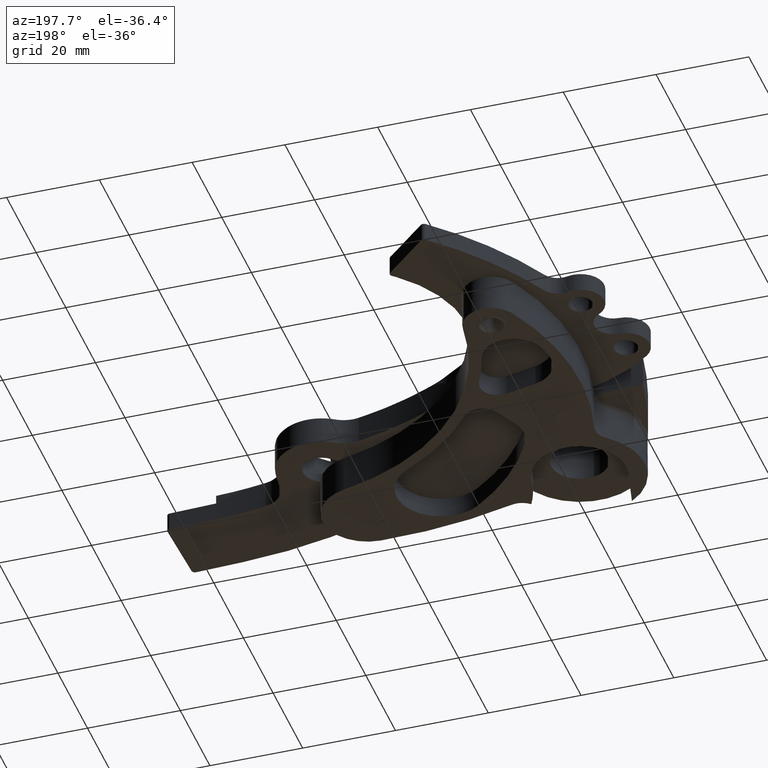
[diagram: clean part render]
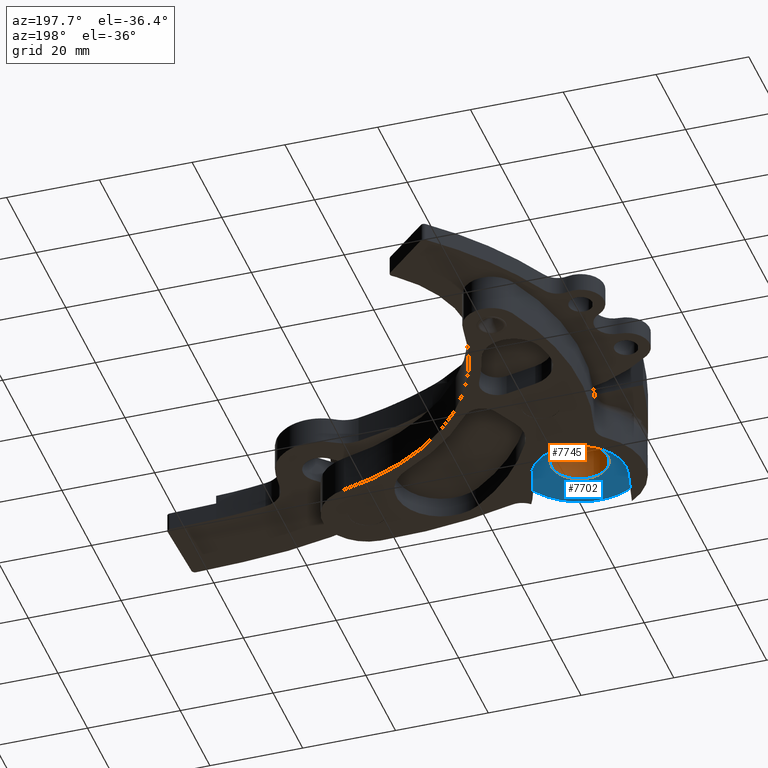
[diagram: same view with the hole feature highlighted: cylindrical wall and planar end face, labeled with their STEP entity ids]
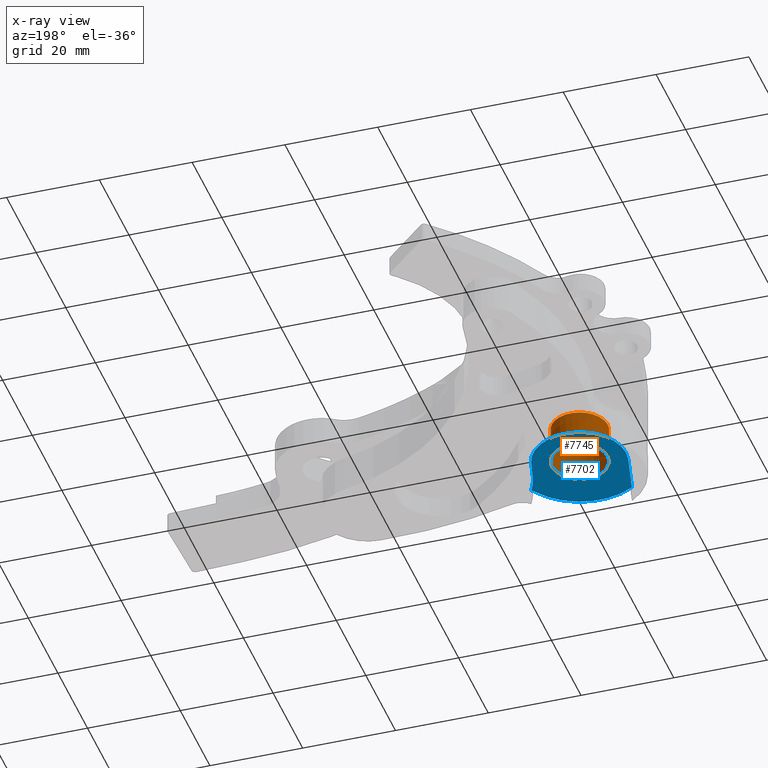
[diagram: x-ray of the same camera — body ghosted, the hole faces saturated]
A machine part, auxiliary view. The highlighted faces form one hole feature of diameter 12.125 mm: the cylindrical wall (entity #7745, orange) and its adjacent planar end face (entity #7702, blue) — they share a circular edge in the B-rep.
The next image is the same camera in x-ray (body ghosted, the hole faces saturated) — the bore reads through the body.
Wall:
#155 = CIRCLE ( 'NONE', #2466, 0.2386811023622052200 ) ;
#245 = CIRCLE ( 'NONE', #2507, 0.2386811023622052200 ) ;
#344 = CARTESIAN_POINT ( 'NONE',  ( 4.336347985208998800, -6.781037750492001400, -0.1377952755905513000 ) ) ;
#345 = DIRECTION ( 'NONE',  ( -0.0000000000000000000, -0.0000000000000000000, 1.000000000000000000 ) ) ;
#346 = DIRECTION ( 'NONE',  ( -1.000000000000000000, 0.0000000000000000000, 0.0000000000000000000 ) ) ;
#578 = CARTESIAN_POINT ( 'NONE',  ( 4.336347985208998800, -6.781037750492001400, -0.4527559055118114400 ) ) ;
#579 = DIRECTION ( 'NONE',  ( -0.0000000000000000000, -0.0000000000000000000, 1.000000000000000000 ) ) ;
#580 = DIRECTION ( 'NONE',  ( -1.000000000000000000, 0.0000000000000000000, 0.0000000000000000000 ) ) ;
#2217 = EDGE_CURVE ( 'NONE', #4867, #4867, #155, .T. ) ;
#2290 = EDGE_CURVE ( 'NONE', #4887, #4887, #245, .T. ) ;
#2466 = AXIS2_PLACEMENT_3D ( 'NONE', #344, #345, #346 ) ;
#2507 = AXIS2_PLACEMENT_3D ( 'NONE', #578, #579, #580 ) ;
#4400 = FACE_OUTER_BOUND ( 'NONE', #7207, .T. ) ;
#4404 = FACE_OUTER_BOUND ( 'NONE', #7188, .T. ) ;
#4406 = CYLINDRICAL_SURFACE ( 'NONE', #8521, 0.2386811023622052200 ) ;
#4867 = VERTEX_POINT ( 'NONE', #6751 ) ;
#4887 = VERTEX_POINT ( 'NONE', #6768 ) ;
#5032 = DIRECTION ( 'NONE',  ( 1.000000000000000000, 0.0000000000000000000, 0.0000000000000000000 ) ) ;
#5033 = CARTESIAN_POINT ( 'NONE',  ( 4.336347985208998800, -6.781037750492001400, -5.558183107328619400 ) ) ;
#5034 = DIRECTION ( 'NONE',  ( 0.0000000000000000000, 0.0000000000000000000, 1.000000000000000000 ) ) ;
#6751 = CARTESIAN_POINT ( 'NONE',  ( 4.097666882846794100, -6.781037750492001400, -0.1377952755905513000 ) ) ;
#6768 = CARTESIAN_POINT ( 'NONE',  ( 4.097666882846794100, -6.781037750492001400, -0.4527559055118114400 ) ) ;
#7188 = EDGE_LOOP ( 'NONE', ( #7392 ) ) ;
#7207 = EDGE_LOOP ( 'NONE', ( #8964 ) ) ;
#7392 = ORIENTED_EDGE ( 'NONE', *, *, #2290, .F. ) ;
#7745 = ADVANCED_FACE ( 'NONE', ( #4400, #4404 ), #4406, .F. ) ;
#8521 = AXIS2_PLACEMENT_3D ( 'NONE', #5033, #5034, #5032 ) ;
#8964 = ORIENTED_EDGE ( 'NONE', *, *, #2217, .T. ) ;
End face:
#155 = CIRCLE ( 'NONE', #2466, 0.2386811023622052200 ) ;
#219 = LINE ( 'NONE', #507, #223 ) ;
#223 = VECTOR ( 'NONE', #511, 39.37007874015748100 ) ;
#224 = CIRCLE ( 'NONE', #2498, 0.3937007874015746000 ) ;
#227 = LINE ( 'NONE', #518, #228 ) ;
#228 = VECTOR ( 'NONE', #519, 39.37007874015748900 ) ;
#229 = CIRCLE ( 'NONE', #2501, 0.7874015748031497600 ) ;
#266 = CIRCLE ( 'NONE', #2514, 0.1574803149606295300 ) ;
#286 = CIRCLE ( 'NONE', #2529, 0.5511811023622041900 ) ;
#344 = CARTESIAN_POINT ( 'NONE',  ( 4.336347985208998800, -6.781037750492001400, -0.1377952755905513000 ) ) ;
#345 = DIRECTION ( 'NONE',  ( -0.0000000000000000000, -0.0000000000000000000, 1.000000000000000000 ) ) ;
#346 = DIRECTION ( 'NONE',  ( -1.000000000000000000, 0.0000000000000000000, 0.0000000000000000000 ) ) ;
#507 = CARTESIAN_POINT ( 'NONE',  ( 4.176154415836330200, -7.140674136766059600, -0.1377952755905513000 ) ) ;
#511 = DIRECTION ( 'NONE',  ( 0.9134764211361085000, -0.4068916662065798500, 0.0000000000000000000 ) ) ;
#518 = CARTESIAN_POINT ( 'NONE',  ( 4.496541554581668300, -6.421401364217943300, -0.1377952755905513000 ) ) ;
#519 = DIRECTION ( 'NONE',  ( -0.9134764211361069400, 0.4068916662065832900, 0.0000000000000000000 ) ) ;
#525 = CARTESIAN_POINT ( 'NONE',  ( 4.336347985208998800, -6.781037750492001400, -0.1377952755905513000 ) ) ;
#526 = DIRECTION ( 'NONE',  ( -0.0000000000000000000, -0.0000000000000000000, 1.000000000000000000 ) ) ;
#527 = DIRECTION ( 'NONE',  ( -1.000000000000000000, 0.0000000000000000000, 0.0000000000000000000 ) ) ;
#548 = CARTESIAN_POINT ( 'NONE',  ( 4.673074138817384000, -5.638051163920757800, -0.1377952755905513000 ) ) ;
#549 = DIRECTION ( 'NONE',  ( 0.0000000000000000000, 0.0000000000000000000, -1.000000000000000000 ) ) ;
#550 = DIRECTION ( 'NONE',  ( -1.000000000000000000, 0.0000000000000000000, 0.0000000000000000000 ) ) ;
#609 = CARTESIAN_POINT ( 'NONE',  ( 4.085990898365238000, -6.118072944888331800, -0.1377952755905513000 ) ) ;
#610 = DIRECTION ( 'NONE',  ( 0.0000000000000000000, 0.0000000000000000000, -1.000000000000000000 ) ) ;
#611 = DIRECTION ( 'NONE',  ( -1.000000000000000000, 0.0000000000000000000, 0.0000000000000000000 ) ) ;
#661 = CARTESIAN_POINT ( 'NONE',  ( 4.336347985208998800, -6.781037750492001400, -0.1377952755905513000 ) ) ;
#662 = DIRECTION ( 'NONE',  ( -0.0000000000000000000, -0.0000000000000000000, 1.000000000000000000 ) ) ;
#663 = DIRECTION ( 'NONE',  ( -1.000000000000000000, 0.0000000000000000000, 0.0000000000000000000 ) ) ;
#1671 = CARTESIAN_POINT ( 'NONE',  ( 4.176154415836330200, -7.140674136766059600, -0.1377952755905513000 ) ) ;
#1672 = CARTESIAN_POINT ( 'NONE',  ( 4.496541554581668300, -6.421401364217943300, -0.1377952755905513000 ) ) ;
#1676 = CARTESIAN_POINT ( 'NONE',  ( 4.352687000072045000, -6.357323936468874900, -0.1377952755905513000 ) ) ;
#2123 = EDGE_LOOP ( 'NONE', ( #6664 ) ) ;
#2141 = EDGE_LOOP ( 'NONE', ( #6862, #6456, #6805, #6762, #6790, #6485 ) ) ;
#2217 = EDGE_CURVE ( 'NONE', #4867, #4867, #155, .T. ) ;
#2271 = EDGE_CURVE ( 'NONE', #8222, #7267, #219, .T. ) ;
#2273 = EDGE_CURVE ( 'NONE', #7267, #7252, #224, .T. ) ;
#2276 = EDGE_CURVE ( 'NONE', #7252, #7274, #227, .T. ) ;
#2278 = EDGE_CURVE ( 'NONE', #7274, #7557, #229, .T. ) ;
#2303 = EDGE_CURVE ( 'NONE', #7557, #8206, #266, .T. ) ;
#2321 = EDGE_CURVE ( 'NONE', #8206, #8222, #286, .T. ) ;
#2466 = AXIS2_PLACEMENT_3D ( 'NONE', #344, #345, #346 ) ;
#2498 = AXIS2_PLACEMENT_3D ( 'NONE', #525, #526, #527 ) ;
#2501 = AXIS2_PLACEMENT_3D ( 'NONE', #548, #549, #550 ) ;
#2514 = AXIS2_PLACEMENT_3D ( 'NONE', #609, #610, #611 ) ;
#2529 = AXIS2_PLACEMENT_3D ( 'NONE', #661, #662, #663 ) ;
#4120 = DIRECTION ( 'NONE',  ( 0.0000000000000000000, 0.0000000000000000000, -1.000000000000000000 ) ) ;
#4121 = CARTESIAN_POINT ( 'NONE',  ( 4.336347985208998800, -6.781037750492001400, -0.1377952755905511900 ) ) ;
#4122 = PLANE ( 'NONE',  #8478 ) ;
#4124 = DIRECTION ( 'NONE',  ( -1.000000000000000000, 0.0000000000000000000, -0.0000000000000000000 ) ) ;
#4306 = FACE_OUTER_BOUND ( 'NONE', #2141, .T. ) ;
#4310 = FACE_BOUND ( 'NONE', #2123, .T. ) ;
#4867 = VERTEX_POINT ( 'NONE', #6751 ) ;
#6224 = CARTESIAN_POINT ( 'NONE',  ( 4.141625806552740500, -6.265398457244702800, -0.1377952755905513000 ) ) ;
#6236 = CARTESIAN_POINT ( 'NONE',  ( 3.823784160112364500, -6.983717134750787800, -0.1377952755905513000 ) ) ;
#6456 = ORIENTED_EDGE ( 'NONE', *, *, #2271, .T. ) ;
#6485 = ORIENTED_EDGE ( 'NONE', *, *, #2303, .T. ) ;
#6664 = ORIENTED_EDGE ( 'NONE', *, *, #2217, .F. ) ;
#6751 = CARTESIAN_POINT ( 'NONE',  ( 4.097666882846794100, -6.781037750492001400, -0.1377952755905513000 ) ) ;
#6762 = ORIENTED_EDGE ( 'NONE', *, *, #2276, .T. ) ;
#6790 = ORIENTED_EDGE ( 'NONE', *, *, #2278, .T. ) ;
#6805 = ORIENTED_EDGE ( 'NONE', *, *, #2273, .T. ) ;
#6862 = ORIENTED_EDGE ( 'NONE', *, *, #2321, .T. ) ;
#7252 = VERTEX_POINT ( 'NONE', #1672 ) ;
#7267 = VERTEX_POINT ( 'NONE', #1671 ) ;
#7274 = VERTEX_POINT ( 'NONE', #1676 ) ;
#7557 = VERTEX_POINT ( 'NONE', #8854 ) ;
#7702 = ADVANCED_FACE ( 'NONE', ( #4306, #4310 ), #4122, .F. ) ;
#8206 = VERTEX_POINT ( 'NONE', #6224 ) ;
#8222 = VERTEX_POINT ( 'NONE', #6236 ) ;
#8478 = AXIS2_PLACEMENT_3D ( 'NONE', #4121, #4120, #4124 ) ;
#8854 = CARTESIAN_POINT ( 'NONE',  ( 4.175053072887833700, -6.247949727530211400, -0.1377952755905513000 ) ) ;